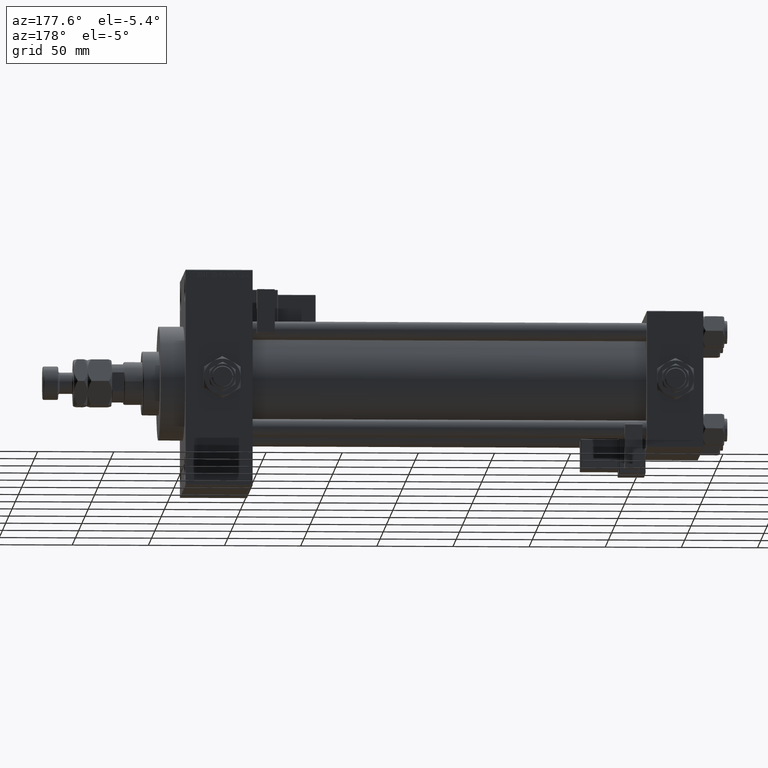
[diagram: clean part render]
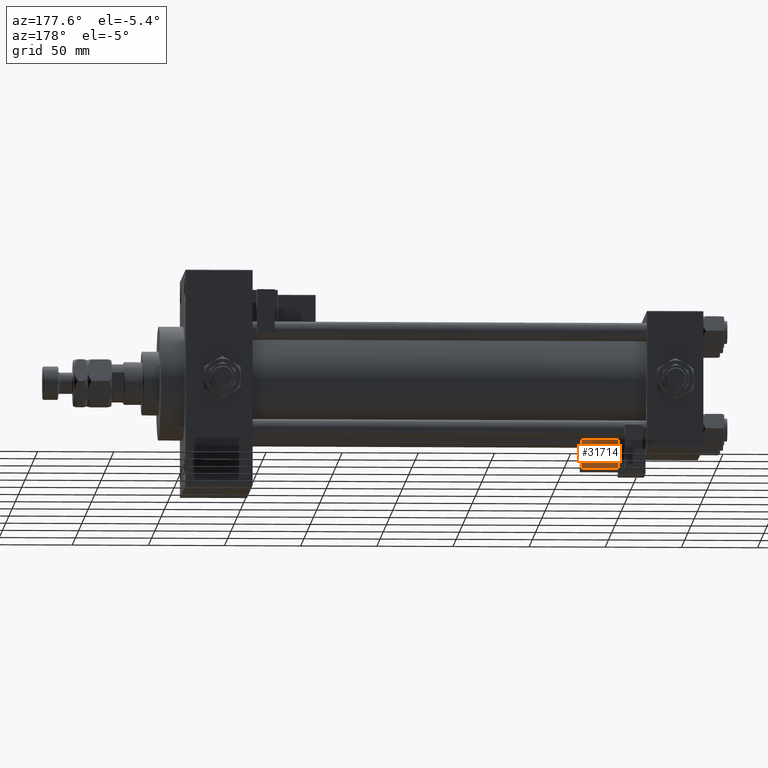
[diagram: same view with one face highlighted and labeled with its STEP entity id]
A machine part, auxiliary view. The second image highlights one B-rep face of the part: STEP entity #31714.
In plain terms, the highlighted planar face has unit normal (0, -0.9994, -0.0353).
Its self-contained STEP definition (entity closure, byte-faithful):
#260 = CARTESIAN_POINT ( 'NONE',  ( 9.250000000000005329, -21.24999999999999645, 2.500000000000005773 ) ) ;
#1054 = DIRECTION ( 'NONE',  ( 0.000000000000000000, -0.000000000000000000, -1.000000000000000000 ) ) ;
#1779 = EDGE_CURVE ( 'NONE', #25508, #17109, #46010, .T. ) ;
#3407 = CARTESIAN_POINT ( 'NONE',  ( 33.25000000000000000, -21.24999999999999645, 2.500000000000009326 ) ) ;
#4232 = VERTEX_POINT ( 'NONE', #24945 ) ;
#6935 = CARTESIAN_POINT ( 'NONE',  ( 33.25000000000000000, -21.24999999999999645, 21.50000000000000711 ) ) ;
#7203 = VECTOR ( 'NONE', #32135, 1000.000000000000000 ) ;
#10579 = DIRECTION ( 'NONE',  ( 1.000000000000000000, -0.000000000000000000, 1.334402673828313339E-16 ) ) ;
#12525 = ORIENTED_EDGE ( 'NONE', *, *, #29602, .T. ) ;
#14075 = EDGE_LOOP ( 'NONE', ( #32871, #48432, #21023, #12525 ) ) ;
#15748 = LINE ( 'NONE', #52592, #7203 ) ;
#16437 = DIRECTION ( 'NONE',  ( 1.734723475976807587E-16, -0.000000000000000000, -1.000000000000000000 ) ) ;
#17109 = VERTEX_POINT ( 'NONE', #260 ) ;
#17723 = DIRECTION ( 'NONE',  ( 0.000000000000000000, -1.000000000000000000, 0.000000000000000000 ) ) ;
#19460 = CARTESIAN_POINT ( 'NONE',  ( 33.75000000000000000, -21.24999999999999645, 21.50000000000000711 ) ) ;
#20793 = VERTEX_POINT ( 'NONE', #6935 ) ;
#21023 = ORIENTED_EDGE ( 'NONE', *, *, #51573, .T. ) ;
#23454 = VECTOR ( 'NONE', #10579, 1000.000000000000000 ) ;
#24945 = CARTESIAN_POINT ( 'NONE',  ( 9.250000000000001776, -21.24999999999999645, 21.50000000000000355 ) ) ;
#25508 = VERTEX_POINT ( 'NONE', #3407 ) ;
#25519 = FACE_OUTER_BOUND ( 'NONE', #14075, .T. ) ;
#26115 = CARTESIAN_POINT ( 'NONE',  ( 33.75000000000000000, -21.24999999999999645, 2.500000000000009326 ) ) ;
#28748 = LINE ( 'NONE', #19460, #23454 ) ;
#29602 = EDGE_CURVE ( 'NONE', #20793, #25508, #32301, .T. ) ;
#31714 = ADVANCED_FACE ( 'NONE', ( #25519 ), #46487, .F. ) ;
#32135 = DIRECTION ( 'NONE',  ( -1.334402673828313339E-16, 0.000000000000000000, 1.000000000000000000 ) ) ;
#32301 = LINE ( 'NONE', #36343, #43920 ) ;
#32513 = VECTOR ( 'NONE', #45745, 1000.000000000000000 ) ;
#32871 = ORIENTED_EDGE ( 'NONE', *, *, #1779, .T. ) ;
#33289 = CARTESIAN_POINT ( 'NONE',  ( 33.75000000000000000, -21.24999999999999645, 22.00000000000001066 ) ) ;
#36343 = CARTESIAN_POINT ( 'NONE',  ( 33.25000000000000000, -21.24999999999999645, 2.000000000000010214 ) ) ;
#36622 = EDGE_CURVE ( 'NONE', #17109, #4232, #15748, .T. ) ;
#38874 = AXIS2_PLACEMENT_3D ( 'NONE', #33289, #17723, #1054 ) ;
#43920 = VECTOR ( 'NONE', #16437, 1000.000000000000000 ) ;
#45745 = DIRECTION ( 'NONE',  ( -1.000000000000000000, 0.000000000000000000, -1.334402673828313339E-16 ) ) ;
#46010 = LINE ( 'NONE', #26115, #32513 ) ;
#46487 = PLANE ( 'NONE',  #38874 ) ;
#48432 = ORIENTED_EDGE ( 'NONE', *, *, #36622, .T. ) ;
#51573 = EDGE_CURVE ( 'NONE', #4232, #20793, #28748, .T. ) ;
#52592 = CARTESIAN_POINT ( 'NONE',  ( 9.250000000000001776, -21.24999999999999645, 22.00000000000000711 ) ) ;